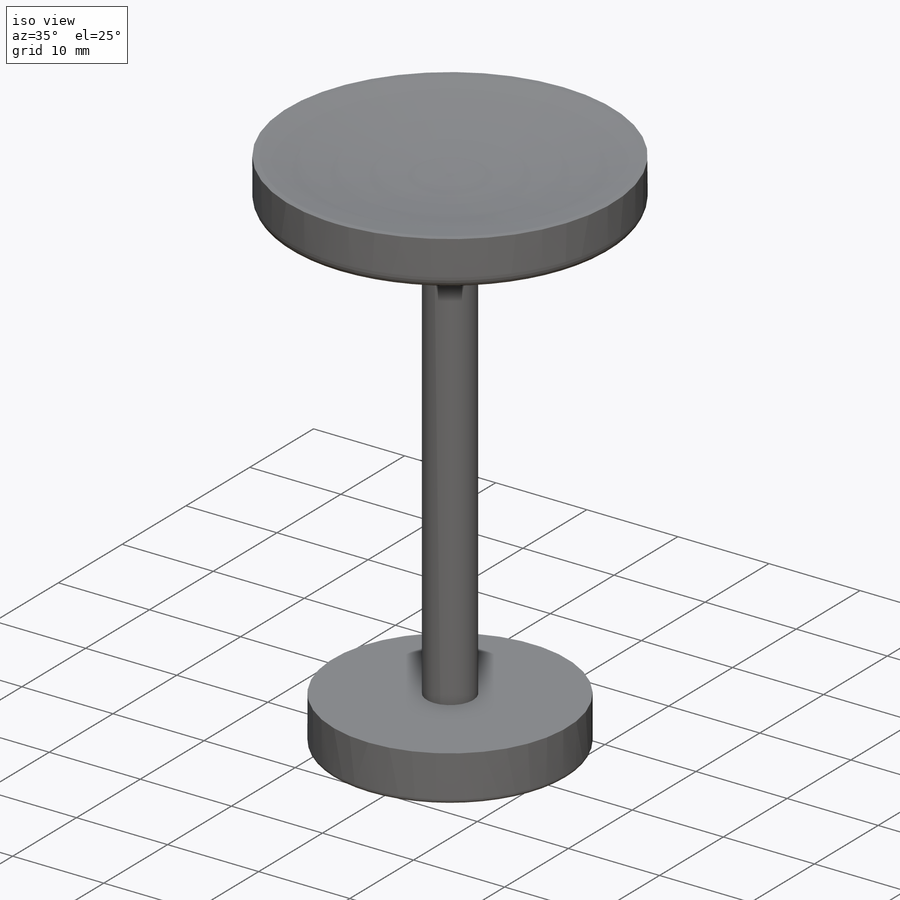
[diagram: iso view]
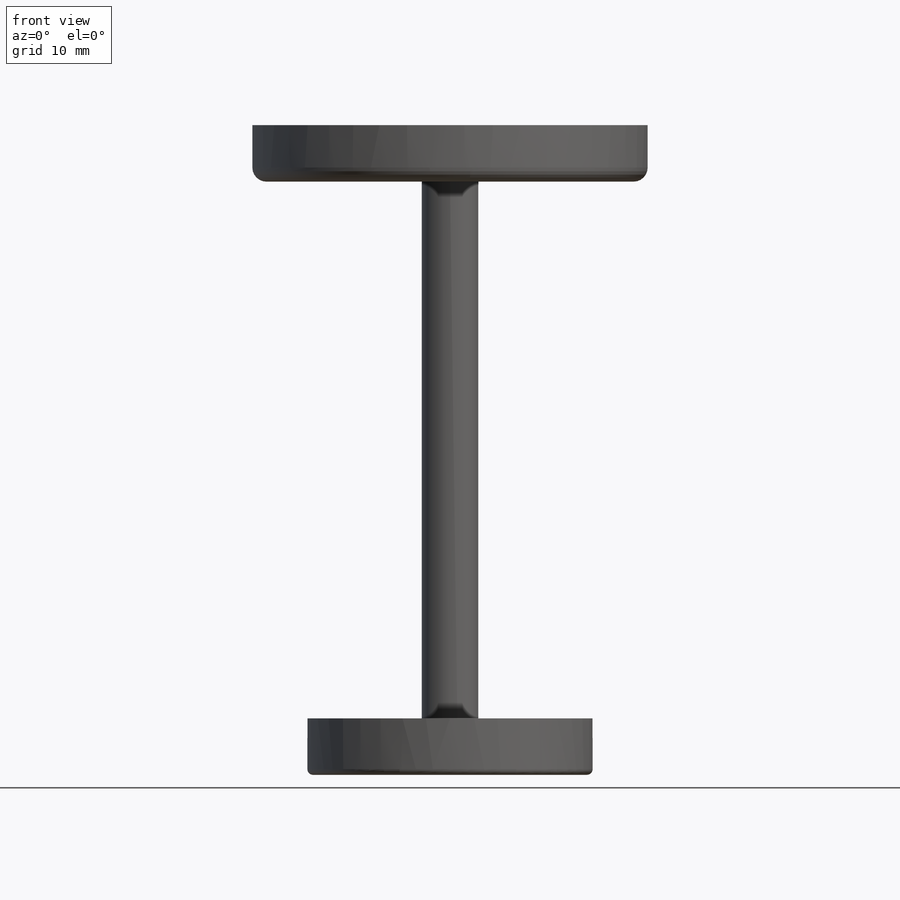
[diagram: front view]
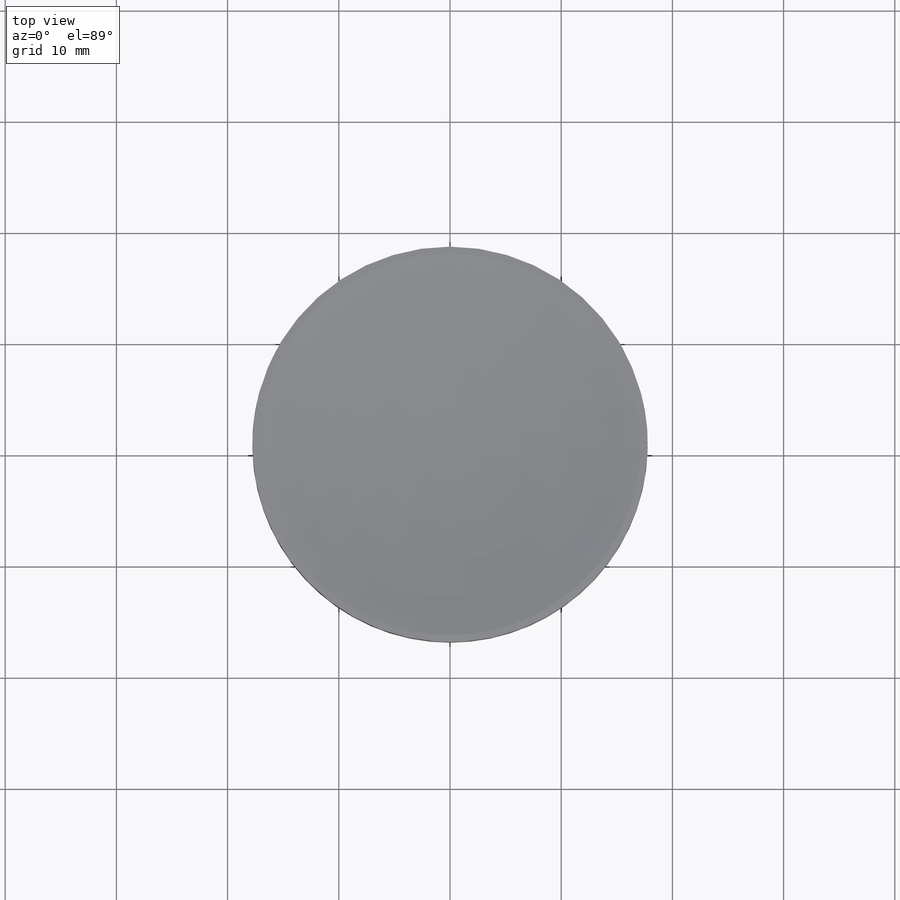
[diagram: top view]
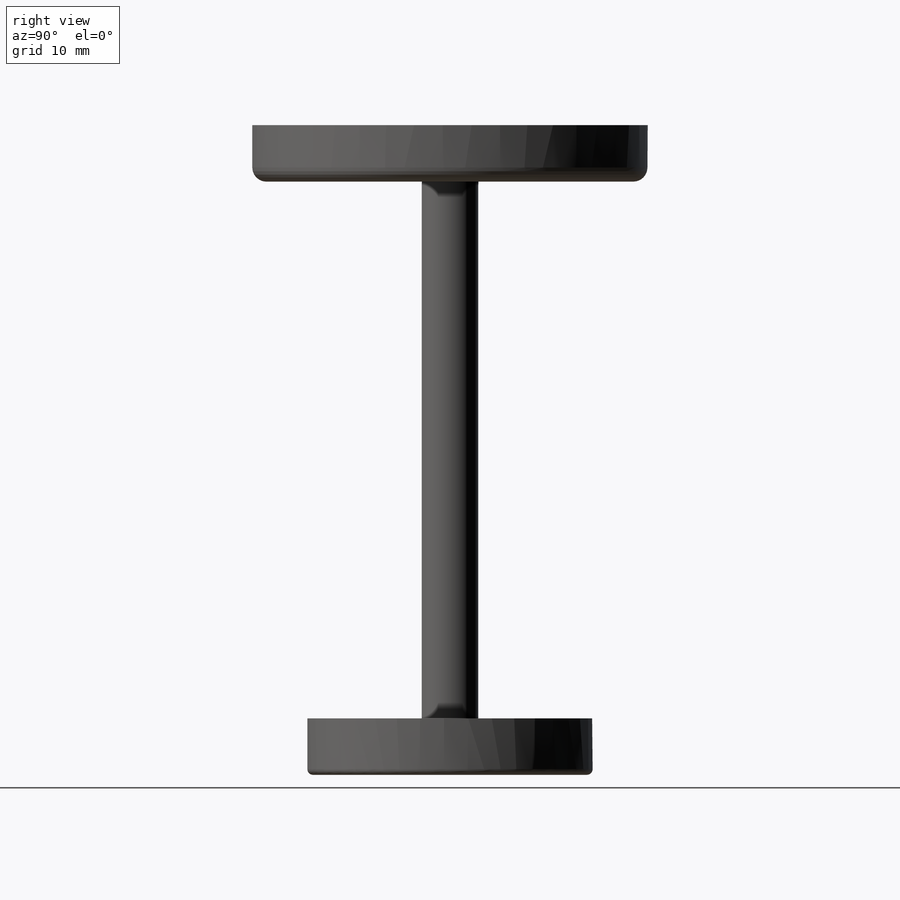
[diagram: right view]
SOLIDWORKS PART (.sldprt)
format: sldprt  version: not decoded by parser v0  size: 188,416 bytes
history: native  units: mm
features: sketch x2, fillet x2, material x1, extrude x1, revolve x1 (+13 scaffold rows collapsed)
feature tree (20):
  scaffold x13  (default folders/planes/origin — collapsed)
  material  "Material <not specified>"
  sketch  "Sketch1"  dims[D1=35.56mm]
  extrude  "Boss-Extrude1"  Depth=2.54mm
  sketch  "Sketch2"  dims[D1=2.54mm D2=0.635mm D3=0.635mm D4=2.54mm D5=5.08mm D6=53.34mm D7=12.827mm]
  revolve  "Revolve1"  Angle=360deg
  fillet  "Fillet1"  Radius=0.508mm
  fillet  "Fillet2"  Radius=1.27mm
decode coverage: 6 of 6 modeling features carry decoded parameters
note: suppression state not decoded; provenance and decode notes live in map.json
